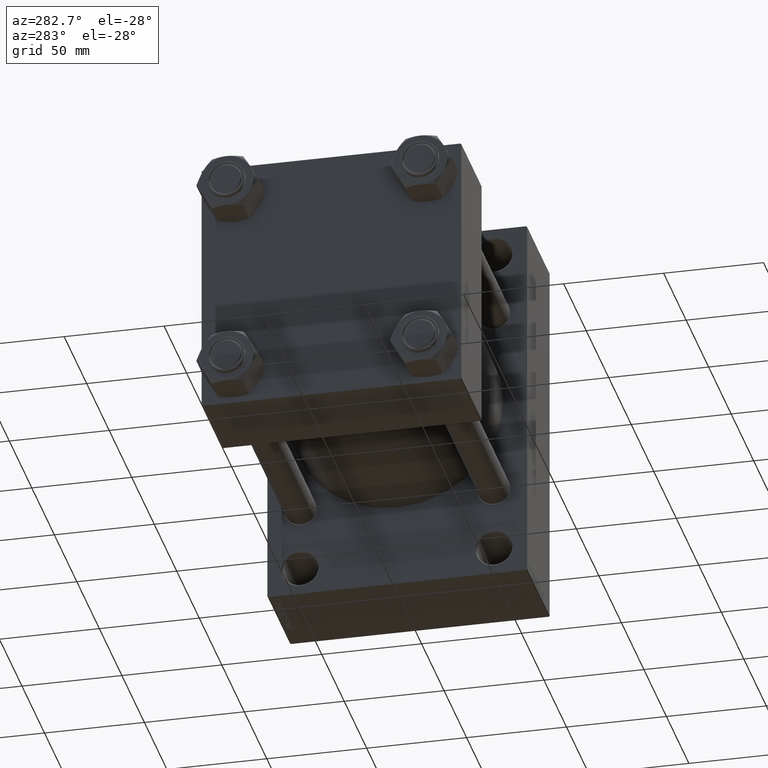
[diagram: clean part render]
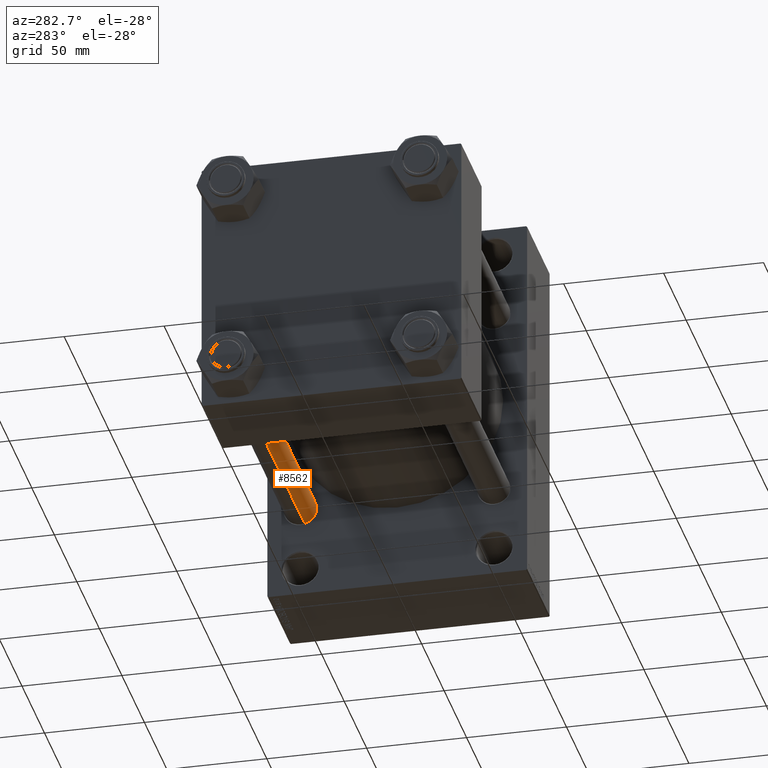
[diagram: same view with one face highlighted and labeled with its STEP entity id]
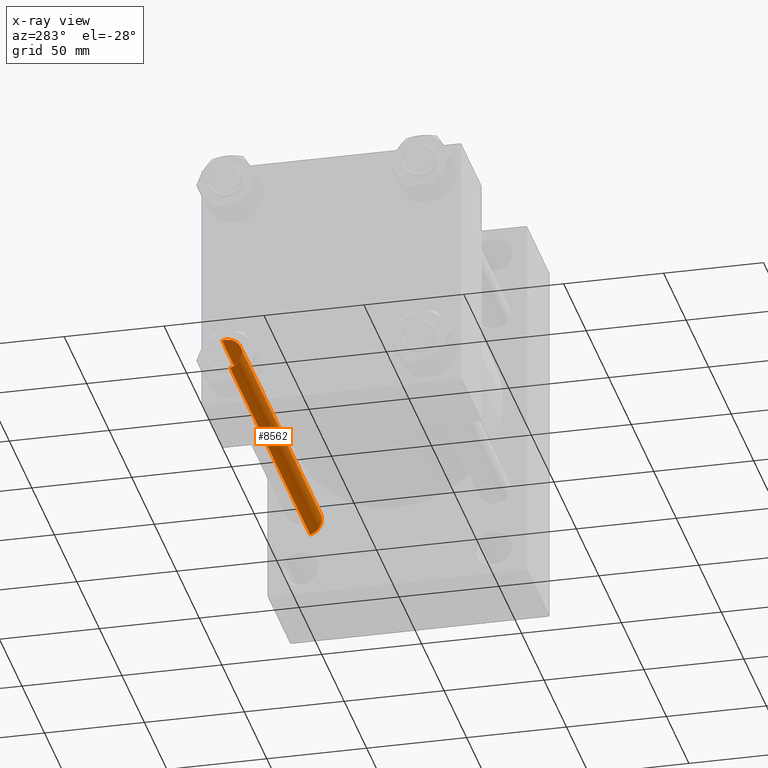
[diagram: x-ray of the same camera — body ghosted, the highlighted face saturated]
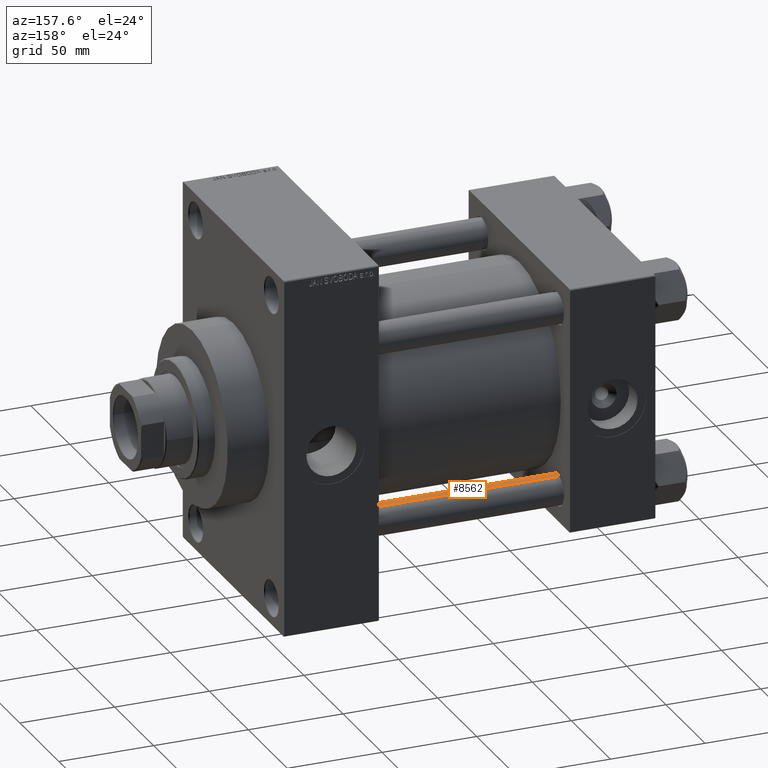
[diagram: same view with one face highlighted and labeled with its STEP entity id]
A machine part, auxiliary view. The second image highlights one B-rep face of the part: STEP entity #8562.
The next image is the same camera in x-ray: the body ghosted, the highlighted face saturated — about 0% of this face is hidden behind the body in this view.
A second angle (auxiliary view) of the same face is appended — the face is thin or edge-on in the first view.
In plain terms, the highlighted cylindrical surface (edge-blend (fillet) strip) has radius 8 mm, axis along (1, -0, 0).
Its self-contained STEP definition (entity closure, byte-faithful):
#558 = EDGE_CURVE ( 'NONE', #42539, #4165, #32379, .T. ) ;
#778 = CARTESIAN_POINT ( 'NONE',  ( 0.000000000000000000, 0.000000000000000000, 179.0000000000000000 ) ) ;
#3158 = VECTOR ( 'NONE', #13840, 1000.000000000000000 ) ;
#3319 = DIRECTION ( 'NONE',  ( 1.000000000000000000, 0.000000000000000000, 0.000000000000000000 ) ) ;
#3953 = ORIENTED_EDGE ( 'NONE', *, *, #25560, .T. ) ;
#4040 = CARTESIAN_POINT ( 'NONE',  ( 8.000000000000000000, 9.797174393178823685E-16, 179.0000000000000000 ) ) ;
#4165 = VERTEX_POINT ( 'NONE', #9382 ) ;
#4401 = CYLINDRICAL_SURFACE ( 'NONE', #18615, 8.000000000000000000 ) ;
#8562 = ADVANCED_FACE ( 'NONE', ( #37422 ), #4401, .T. ) ;
#9382 = CARTESIAN_POINT ( 'NONE',  ( -8.000000000000000000, 0.000000000000000000, 0.5000000000001392220 ) ) ;
#9812 = CIRCLE ( 'NONE', #42918, 8.000000000000000000 ) ;
#11498 = CARTESIAN_POINT ( 'NONE',  ( 8.000000000000000000, 9.797174393178823685E-16, 178.5000000000001137 ) ) ;
#13840 = DIRECTION ( 'NONE',  ( -0.000000000000000000, -0.000000000000000000, -1.000000000000000000 ) ) ;
#14329 = ORIENTED_EDGE ( 'NONE', *, *, #35339, .F. ) ;
#15713 = DIRECTION ( 'NONE',  ( -0.000000000000000000, -0.000000000000000000, -1.000000000000000000 ) ) ;
#17232 = ORIENTED_EDGE ( 'NONE', *, *, #21200, .T. ) ;
#17719 = CARTESIAN_POINT ( 'NONE',  ( 8.000000000000000000, 9.797174393178823685E-16, 0.5000000000001392220 ) ) ;
#18264 = DIRECTION ( 'NONE',  ( -0.000000000000000000, -0.000000000000000000, 1.000000000000000000 ) ) ;
#18615 = AXIS2_PLACEMENT_3D ( 'NONE', #778, #15713, #30187 ) ;
#20409 = CARTESIAN_POINT ( 'NONE',  ( 0.000000000000000000, 0.000000000000000000, 178.5000000000001137 ) ) ;
#21045 = CARTESIAN_POINT ( 'NONE',  ( -8.000000000000000000, 0.000000000000000000, 179.0000000000000000 ) ) ;
#21200 = EDGE_CURVE ( 'NONE', #4165, #33122, #42812, .T. ) ;
#22119 = CARTESIAN_POINT ( 'NONE',  ( 0.000000000000000000, 0.000000000000000000, 0.5000000000001392220 ) ) ;
#25003 = DIRECTION ( 'NONE',  ( 1.000000000000000000, 0.000000000000000000, 0.000000000000000000 ) ) ;
#25560 = EDGE_CURVE ( 'NONE', #32004, #42539, #9812, .T. ) ;
#28937 = AXIS2_PLACEMENT_3D ( 'NONE', #22119, #18264, #3319 ) ;
#29827 = DIRECTION ( 'NONE',  ( -0.000000000000000000, -0.000000000000000000, -1.000000000000000000 ) ) ;
#30187 = DIRECTION ( 'NONE',  ( -1.000000000000000000, 0.000000000000000000, 0.000000000000000000 ) ) ;
#30331 = VECTOR ( 'NONE', #29827, 1000.000000000000000 ) ;
#32004 = VERTEX_POINT ( 'NONE', #11498 ) ;
#32379 = LINE ( 'NONE', #21045, #3158 ) ;
#33122 = VERTEX_POINT ( 'NONE', #17719 ) ;
#35339 = EDGE_CURVE ( 'NONE', #32004, #33122, #37067, .T. ) ;
#35416 = EDGE_LOOP ( 'NONE', ( #14329, #3953, #43527, #17232 ) ) ;
#37067 = LINE ( 'NONE', #4040, #30331 ) ;
#37422 = FACE_OUTER_BOUND ( 'NONE', #35416, .T. ) ;
#40223 = CARTESIAN_POINT ( 'NONE',  ( -8.000000000000000000, 0.000000000000000000, 178.5000000000001137 ) ) ;
#42539 = VERTEX_POINT ( 'NONE', #40223 ) ;
#42812 = CIRCLE ( 'NONE', #28937, 8.000000000000000000 ) ;
#42918 = AXIS2_PLACEMENT_3D ( 'NONE', #20409, #43318, #25003 ) ;
#43318 = DIRECTION ( 'NONE',  ( 0.000000000000000000, 0.000000000000000000, -1.000000000000000000 ) ) ;
#43527 = ORIENTED_EDGE ( 'NONE', *, *, #558, .T. ) ;